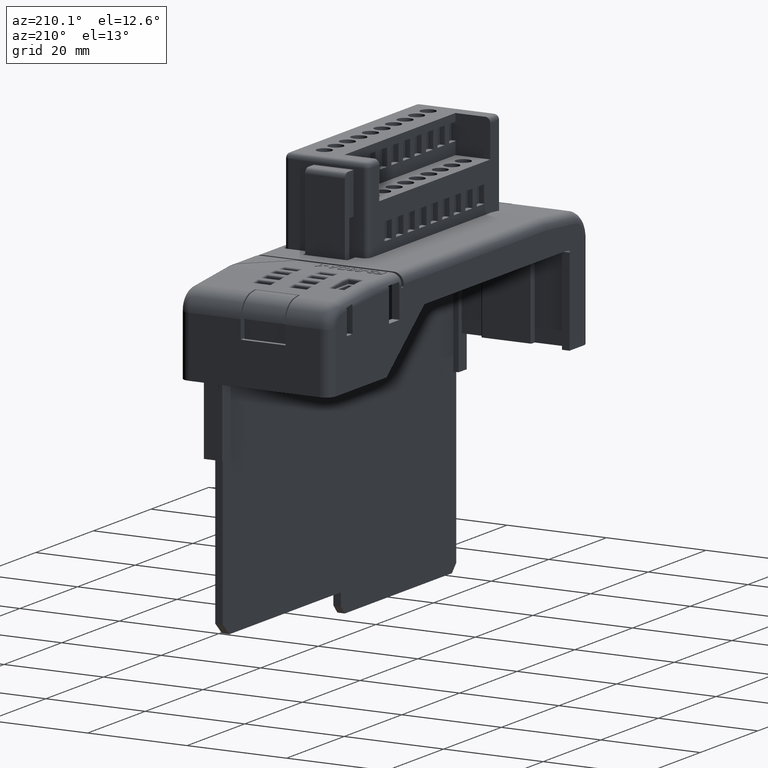
[diagram: clean part render]
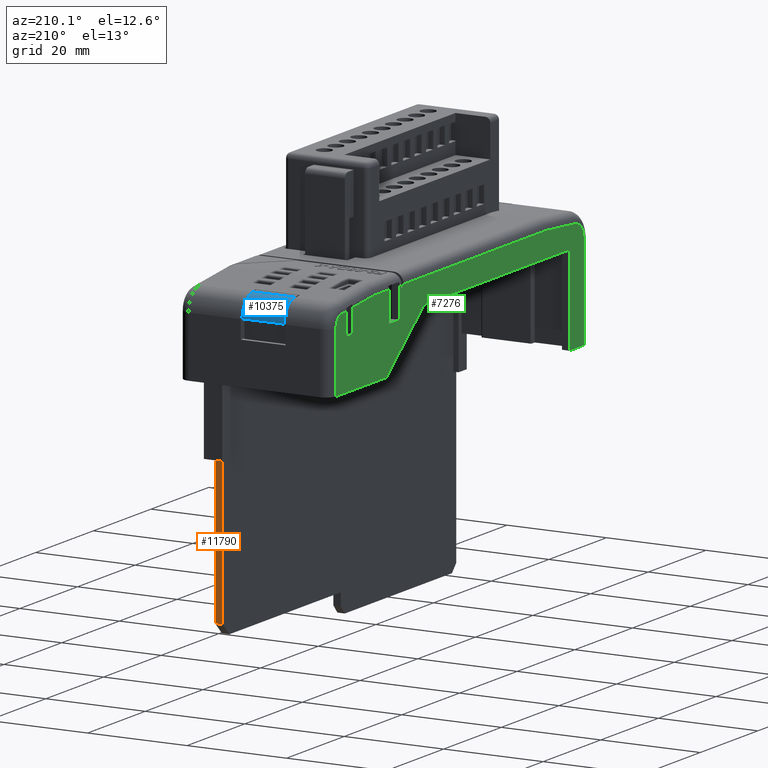
[diagram: same view with three faces highlighted in distinct colors, each labeled with its STEP entity id]
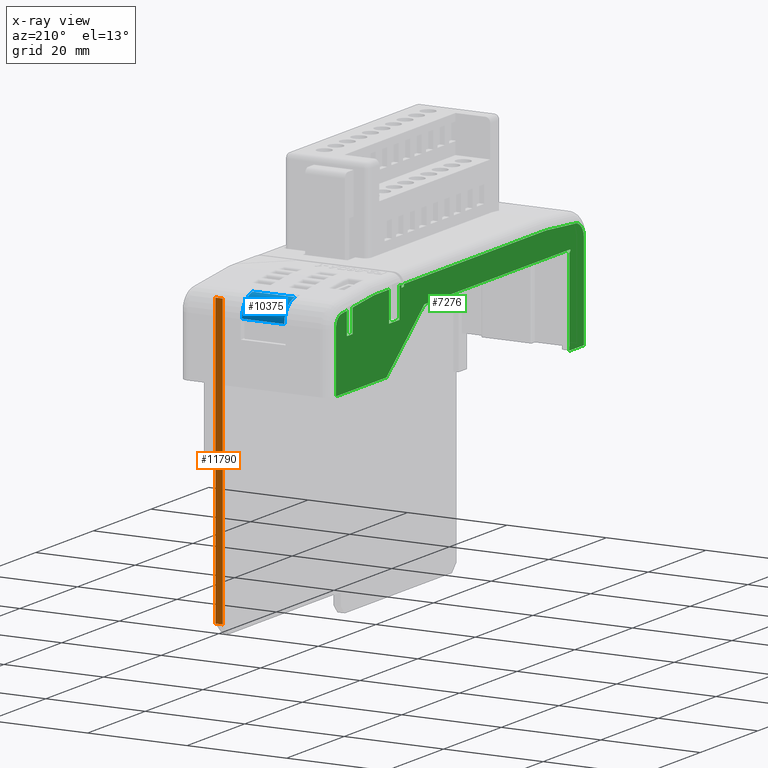
[diagram: x-ray of the same camera — body ghosted, the three highlighted faces saturated]
A machine part, auxiliary view with three faces highlighted in distinct colors.
The next image is the same camera in x-ray (body ghosted, the three faces saturated) — at least one of them is partly hidden behind the body in this view.
Their STEP definitions:

[orange] entity #11790 — the highlighted planar face has unit normal (0, -1, 0).
#5488 = CARTESIAN_POINT ( 'NONE',  ( 24.78303960287886600, 44.88700087247079300, -26.63627445836080200 ) ) ;
#5533 = DIRECTION ( 'NONE',  ( 0.0000000000000000000, 0.0000000000000000000, -1.000000000000000000 ) ) ;
#5534 = VECTOR ( 'NONE', #5533, 1000.000000000000000 ) ;
#5535 = CARTESIAN_POINT ( 'NONE',  ( 24.78303960287886600, 44.88700087247079300, 1.850847262512347500 ) ) ;
#5536 = LINE ( 'NONE', #5535, #5534 ) ;
#5760 = CARTESIAN_POINT ( 'NONE',  ( 24.78303960287886600, 44.88700087247079300, 1.850847262512347300 ) ) ;
#11646 = EDGE_CURVE ( 'NONE', #11647, #11672, #30476, .T. ) ;
#11647 = VERTEX_POINT ( 'NONE', #30472 ) ;
#11672 = VERTEX_POINT ( 'NONE', #30609 ) ;
#11754 = EDGE_CURVE ( 'NONE', #11647, #11755, #30802, .T. ) ;
#11755 = VERTEX_POINT ( 'NONE', #30798 ) ;
#11789 = EDGE_CURVE ( 'NONE', #11755, #32156, #30821, .T. ) ;
#11790 = ADVANCED_FACE ( 'NONE', ( #30876 ), #30859, .F. ) ;
#11791 = EDGE_LOOP ( 'NONE', ( #11792, #11794, #11795, #11796, #11797 ) ) ;
#11792 = ORIENTED_EDGE ( 'NONE', *, *, #11793, .T. ) ;
#11793 = EDGE_CURVE ( 'NONE', #11672, #25363, #30853, .T. ) ;
#11794 = ORIENTED_EDGE ( 'NONE', *, *, #25370, .F. ) ;
#11795 = ORIENTED_EDGE ( 'NONE', *, *, #11789, .F. ) ;
#11796 = ORIENTED_EDGE ( 'NONE', *, *, #11754, .F. ) ;
#11797 = ORIENTED_EDGE ( 'NONE', *, *, #11646, .T. ) ;
#25363 = VERTEX_POINT ( 'NONE', #5488 ) ;
#25370 = EDGE_CURVE ( 'NONE', #32156, #25363, #5536, .T. ) ;
#30472 = CARTESIAN_POINT ( 'NONE',  ( 26.28303960287886600, 44.88700087247079300, -56.24717430906225200 ) ) ;
#30473 = DIRECTION ( 'NONE',  ( -1.000000000000000000, -0.0000000000000000000, -0.0000000000000000000 ) ) ;
#30474 = VECTOR ( 'NONE', #30473, 1000.000000000000000 ) ;
#30475 = CARTESIAN_POINT ( 'NONE',  ( 26.28303960287886600, 44.88700087247079300, -56.24717430906225200 ) ) ;
#30476 = LINE ( 'NONE', #30475, #30474 ) ;
#30609 = CARTESIAN_POINT ( 'NONE',  ( 24.78303960287886600, 44.88700087247079300, -56.24717430906225200 ) ) ;
#30798 = CARTESIAN_POINT ( 'NONE',  ( 26.28303960287886600, 44.88700087247079300, 1.850847262512347500 ) ) ;
#30799 = DIRECTION ( 'NONE',  ( -0.0000000000000000000, -0.0000000000000000000, 1.000000000000000000 ) ) ;
#30800 = VECTOR ( 'NONE', #30799, 1000.000000000000000 ) ;
#30801 = CARTESIAN_POINT ( 'NONE',  ( 26.28303960287886600, 44.88700087247079300, 1.850847262512347500 ) ) ;
#30802 = LINE ( 'NONE', #30801, #30800 ) ;
#30818 = DIRECTION ( 'NONE',  ( -1.000000000000000000, -0.0000000000000000000, -0.0000000000000000000 ) ) ;
#30819 = VECTOR ( 'NONE', #30818, 1000.000000000000000 ) ;
#30820 = CARTESIAN_POINT ( 'NONE',  ( 26.28303960287886600, 44.88700087247079300, 1.850847262512347500 ) ) ;
#30821 = LINE ( 'NONE', #30820, #30819 ) ;
#30850 = DIRECTION ( 'NONE',  ( -0.0000000000000000000, -0.0000000000000000000, 1.000000000000000000 ) ) ;
#30851 = VECTOR ( 'NONE', #30850, 1000.000000000000000 ) ;
#30852 = CARTESIAN_POINT ( 'NONE',  ( 24.78303960287886600, 44.88700087247079300, 1.850847262512347500 ) ) ;
#30853 = LINE ( 'NONE', #30852, #30851 ) ;
#30855 = DIRECTION ( 'NONE',  ( 0.0000000000000000000, -0.0000000000000000000, -1.000000000000000000 ) ) ;
#30856 = DIRECTION ( 'NONE',  ( 0.0000000000000000000, -1.000000000000000000, 0.0000000000000000000 ) ) ;
#30857 = CARTESIAN_POINT ( 'NONE',  ( 26.28303960287886600, 44.88700087247079300, 1.850847262512347500 ) ) ;
#30858 = AXIS2_PLACEMENT_3D ( 'NONE', #30857, #30856, #30855 ) ;
#30859 = PLANE ( 'NONE',  #30858 ) ;
#30876 = FACE_OUTER_BOUND ( 'NONE', #11791, .T. ) ;
#32156 = VERTEX_POINT ( 'NONE', #5760 ) ;

[blue] entity #10375 — the highlighted cylindrical surface (edge-blend (fillet) strip) has radius 4.116 mm, axis along (-1, -0, -0).
#10351 = ORIENTED_EDGE ( 'NONE', *, *, #10352, .T. ) ;
#10352 = EDGE_CURVE ( 'NONE', #10371, #10353, #26361, .T. ) ;
#10353 = VERTEX_POINT ( 'NONE', #26352 ) ;
#10354 = ORIENTED_EDGE ( 'NONE', *, *, #10355, .T. ) ;
#10355 = EDGE_CURVE ( 'NONE', #10353, #10384, #26350, .T. ) ;
#10356 = ORIENTED_EDGE ( 'NONE', *, *, #10383, .T. ) ;
#10371 = VERTEX_POINT ( 'NONE', #26406 ) ;
#10373 = EDGE_CURVE ( 'NONE', #10371, #10381, #26404, .T. ) ;
#10375 = ADVANCED_FACE ( 'NONE', ( #26400 ), #26437, .T. ) ;
#10376 = EDGE_LOOP ( 'NONE', ( #10377, #10351, #10354, #10356 ) ) ;
#10377 = ORIENTED_EDGE ( 'NONE', *, *, #10373, .F. ) ;
#10381 = VERTEX_POINT ( 'NONE', #26427 ) ;
#10383 = EDGE_CURVE ( 'NONE', #10384, #10381, #26426, .T. ) ;
#10384 = VERTEX_POINT ( 'NONE', #26473 ) ;
#26347 = DIRECTION ( 'NONE',  ( -1.000000000000000000, -0.0000000000000000000, -0.0000000000000000000 ) ) ;
#26348 = VECTOR ( 'NONE', #26347, 1000.000000000000000 ) ;
#26349 = CARTESIAN_POINT ( 'NONE',  ( 27.84626436469064000, 49.47447470938786300, -0.1325193732507817000 ) ) ;
#26350 = LINE ( 'NONE', #26349, #26348 ) ;
#26352 = CARTESIAN_POINT ( 'NONE',  ( 18.25000000000000000, 49.47447470938786300, -0.1325193732507817000 ) ) ;
#26353 = DIRECTION ( 'NONE',  ( 0.0000000000000000000, 0.0000000000000000000, 1.000000000000000000 ) ) ;
#26354 = DIRECTION ( 'NONE',  ( -1.000000000000000000, 0.0000000000000000000, 0.0000000000000000000 ) ) ;
#26355 = CARTESIAN_POINT ( 'NONE',  ( 18.25000000000000000, 45.35844399414033700, -0.1325193732508093700 ) ) ;
#26356 = AXIS2_PLACEMENT_3D ( 'NONE', #26355, #26354, #26353 ) ;
#26361 = CIRCLE ( 'NONE', #26356, 4.116030715247525500 ) ;
#26400 = FACE_OUTER_BOUND ( 'NONE', #10376, .T. ) ;
#26401 = DIRECTION ( 'NONE',  ( -1.000000000000000000, -0.0000000000000000000, -0.0000000000000000000 ) ) ;
#26402 = VECTOR ( 'NONE', #26401, 1000.000000000000000 ) ;
#26403 = CARTESIAN_POINT ( 'NONE',  ( 27.84626436469064000, 45.76829092650315500, 3.963055597482093400 ) ) ;
#26404 = LINE ( 'NONE', #26403, #26402 ) ;
#26406 = CARTESIAN_POINT ( 'NONE',  ( 18.25000000000000000, 45.76829092650315500, 3.963055597482093400 ) ) ;
#26424 = CARTESIAN_POINT ( 'NONE',  ( 9.750000000000000000, 45.35844399414033700, -0.1325193732508093700 ) ) ;
#26425 = AXIS2_PLACEMENT_3D ( 'NONE', #26424, #26475, #26474 ) ;
#26426 = CIRCLE ( 'NONE', #26425, 4.116030715247525500 ) ;
#26427 = CARTESIAN_POINT ( 'NONE',  ( 9.750000000000000000, 45.76829092650315500, 3.963055597482093400 ) ) ;
#26432 = DIRECTION ( 'NONE',  ( 0.0000000000000000000, 0.0000000000000000000, 1.000000000000000000 ) ) ;
#26433 = DIRECTION ( 'NONE',  ( -1.000000000000000000, -0.0000000000000000000, -0.0000000000000000000 ) ) ;
#26434 = CARTESIAN_POINT ( 'NONE',  ( 27.84626436469064000, 45.35844399414033700, -0.1325193732508093700 ) ) ;
#26435 = AXIS2_PLACEMENT_3D ( 'NONE', #26434, #26433, #26432 ) ;
#26437 = CYLINDRICAL_SURFACE ( 'NONE', #26435, 4.116030715247525500 ) ;
#26473 = CARTESIAN_POINT ( 'NONE',  ( 9.750000000000000000, 49.47447470938786300, -0.1325193732507817000 ) ) ;
#26474 = DIRECTION ( 'NONE',  ( 0.0000000000000000000, 0.0000000000000000000, 1.000000000000000000 ) ) ;
#26475 = DIRECTION ( 'NONE',  ( 1.000000000000000000, 0.0000000000000000000, -0.0000000000000000000 ) ) ;

[green] entity #7276 — the highlighted planar face has unit normal (1, 0, -0).
#1320 = EDGE_CURVE ( 'NONE', #13084, #1321, #13403, .T. ) ;
#1321 = VERTEX_POINT ( 'NONE', #13399 ) ;
#1382 = EDGE_CURVE ( 'NONE', #1517, #1506, #13398, .T. ) ;
#1506 = VERTEX_POINT ( 'NONE', #13392 ) ;
#1517 = VERTEX_POINT ( 'NONE', #13387 ) ;
#4729 = CARTESIAN_POINT ( 'NONE',  ( 0.5000000000000000000, 24.72293079737083200, 2.615798087132890100 ) ) ;
#4730 = CARTESIAN_POINT ( 'NONE',  ( 0.5000000000000000000, 24.72293079737083200, 3.113725541639198500 ) ) ;
#4789 = DIRECTION ( 'NONE',  ( 0.0000000000000000000, 0.0000000000000000000, -1.000000000000000000 ) ) ;
#4790 = VECTOR ( 'NONE', #4789, 1000.000000000000000 ) ;
#4791 = CARTESIAN_POINT ( 'NONE',  ( 0.5000000000000000000, 24.72293079737083200, 4.363725541639205100 ) ) ;
#4792 = LINE ( 'NONE', #4791, #4790 ) ;
#5605 = CARTESIAN_POINT ( 'NONE',  ( 0.5000000000000000000, 23.97447470938786700, 3.113725541639198900 ) ) ;
#5607 = DIRECTION ( 'NONE',  ( 0.0000000000000000000, 1.000000000000000000, -7.245885361707420800E-017 ) ) ;
#5608 = VECTOR ( 'NONE', #5607, 1000.000000000000000 ) ;
#5609 = CARTESIAN_POINT ( 'NONE',  ( 0.5000000000000000000, 34.26971755498956900, 3.113725541639194000 ) ) ;
#5610 = LINE ( 'NONE', #5609, #5608 ) ;
#5615 = CARTESIAN_POINT ( 'NONE',  ( 0.5000000000000000000, -25.50935379472779700, 3.113725541639198500 ) ) ;
#6443 = VERTEX_POINT ( 'NONE', #14790 ) ;
#6482 = VERTEX_POINT ( 'NONE', #14863 ) ;
#6484 = EDGE_CURVE ( 'NONE', #6443, #6482, #14861, .T. ) ;
#6683 = VERTEX_POINT ( 'NONE', #15259 ) ;
#6685 = EDGE_CURVE ( 'NONE', #6686, #6683, #15258, .T. ) ;
#6686 = VERTEX_POINT ( 'NONE', #15254 ) ;
#7276 = ADVANCED_FACE ( 'NONE', ( #16790 ), #16837, .F. ) ;
#7277 = EDGE_LOOP ( 'NONE', ( #7278, #7279, #7282, #7284, #7285, #7348, #7351, #7354, #7356, #7357, #7360, #7335, #7338, #7342, #7345, #7319, #7321, #7322, #7325, #7328, #7331, #7394, #7396, #7397, #7400, #7403 ) ) ;
#7278 = ORIENTED_EDGE ( 'NONE', *, *, #29689, .T. ) ;
#7279 = ORIENTED_EDGE ( 'NONE', *, *, #7280, .F. ) ;
#7280 = EDGE_CURVE ( 'NONE', #7281, #29755, #16832, .T. ) ;
#7281 = VERTEX_POINT ( 'NONE', #16828 ) ;
#7282 = ORIENTED_EDGE ( 'NONE', *, *, #7283, .F. ) ;
#7283 = EDGE_CURVE ( 'NONE', #13085, #7281, #16826, .T. ) ;
#7284 = ORIENTED_EDGE ( 'NONE', *, *, #13086, .F. ) ;
#7285 = ORIENTED_EDGE ( 'NONE', *, *, #1320, .T. ) ;
#7316 = EDGE_CURVE ( 'NONE', #7402, #29557, #16941, .T. ) ;
#7319 = ORIENTED_EDGE ( 'NONE', *, *, #7320, .T. ) ;
#7320 = EDGE_CURVE ( 'NONE', #7347, #6686, #16973, .T. ) ;
#7321 = ORIENTED_EDGE ( 'NONE', *, *, #6685, .T. ) ;
#7322 = ORIENTED_EDGE ( 'NONE', *, *, #7323, .F. ) ;
#7323 = EDGE_CURVE ( 'NONE', #7324, #6683, #16969, .T. ) ;
#7324 = VERTEX_POINT ( 'NONE', #16965 ) ;
#7325 = ORIENTED_EDGE ( 'NONE', *, *, #7326, .F. ) ;
#7326 = EDGE_CURVE ( 'NONE', #7327, #7324, #16964, .T. ) ;
#7327 = VERTEX_POINT ( 'NONE', #16959 ) ;
#7328 = ORIENTED_EDGE ( 'NONE', *, *, #7329, .F. ) ;
#7329 = EDGE_CURVE ( 'NONE', #7330, #7327, #16958, .T. ) ;
#7330 = VERTEX_POINT ( 'NONE', #16954 ) ;
#7331 = ORIENTED_EDGE ( 'NONE', *, *, #7332, .F. ) ;
#7332 = EDGE_CURVE ( 'NONE', #7393, #7330, #16953, .T. ) ;
#7333 = EDGE_CURVE ( 'NONE', #7334, #7359, #16948, .T. ) ;
#7334 = VERTEX_POINT ( 'NONE', #17004 ) ;
#7335 = ORIENTED_EDGE ( 'NONE', *, *, #7336, .F. ) ;
#7336 = EDGE_CURVE ( 'NONE', #7337, #7334, #17003, .T. ) ;
#7337 = VERTEX_POINT ( 'NONE', #16999 ) ;
#7338 = ORIENTED_EDGE ( 'NONE', *, *, #7339, .F. ) ;
#7339 = EDGE_CURVE ( 'NONE', #7340, #7337, #16998, .T. ) ;
#7340 = VERTEX_POINT ( 'NONE', #16994 ) ;
#7342 = ORIENTED_EDGE ( 'NONE', *, *, #7343, .T. ) ;
#7343 = EDGE_CURVE ( 'NONE', #7340, #7344, #16993, .T. ) ;
#7344 = VERTEX_POINT ( 'NONE', #16989 ) ;
#7345 = ORIENTED_EDGE ( 'NONE', *, *, #7346, .T. ) ;
#7346 = EDGE_CURVE ( 'NONE', #7344, #7347, #16988, .T. ) ;
#7347 = VERTEX_POINT ( 'NONE', #16983 ) ;
#7348 = ORIENTED_EDGE ( 'NONE', *, *, #7349, .F. ) ;
#7349 = EDGE_CURVE ( 'NONE', #7350, #1321, #16982, .T. ) ;
#7350 = VERTEX_POINT ( 'NONE', #16978 ) ;
#7351 = ORIENTED_EDGE ( 'NONE', *, *, #7352, .F. ) ;
#7352 = EDGE_CURVE ( 'NONE', #7353, #7350, #17038, .T. ) ;
#7353 = VERTEX_POINT ( 'NONE', #17034 ) ;
#7354 = ORIENTED_EDGE ( 'NONE', *, *, #7355, .F. ) ;
#7355 = EDGE_CURVE ( 'NONE', #1517, #7353, #17033, .T. ) ;
#7356 = ORIENTED_EDGE ( 'NONE', *, *, #1382, .T. ) ;
#7357 = ORIENTED_EDGE ( 'NONE', *, *, #7358, .T. ) ;
#7358 = EDGE_CURVE ( 'NONE', #1506, #7359, #17029, .T. ) ;
#7359 = VERTEX_POINT ( 'NONE', #17025 ) ;
#7360 = ORIENTED_EDGE ( 'NONE', *, *, #7333, .F. ) ;
#7393 = VERTEX_POINT ( 'NONE', #17141 ) ;
#7394 = ORIENTED_EDGE ( 'NONE', *, *, #7395, .F. ) ;
#7395 = EDGE_CURVE ( 'NONE', #6443, #7393, #17140, .T. ) ;
#7396 = ORIENTED_EDGE ( 'NONE', *, *, #6484, .T. ) ;
#7397 = ORIENTED_EDGE ( 'NONE', *, *, #7398, .T. ) ;
#7398 = EDGE_CURVE ( 'NONE', #6482, #7399, #17180, .T. ) ;
#7399 = VERTEX_POINT ( 'NONE', #17176 ) ;
#7400 = ORIENTED_EDGE ( 'NONE', *, *, #7401, .T. ) ;
#7401 = EDGE_CURVE ( 'NONE', #7399, #7402, #17175, .T. ) ;
#7402 = VERTEX_POINT ( 'NONE', #17170 ) ;
#7403 = ORIENTED_EDGE ( 'NONE', *, *, #7316, .T. ) ;
#13084 = VERTEX_POINT ( 'NONE', #4730 ) ;
#13085 = VERTEX_POINT ( 'NONE', #4729 ) ;
#13086 = EDGE_CURVE ( 'NONE', #13084, #13085, #4792, .T. ) ;
#13387 = CARTESIAN_POINT ( 'NONE',  ( 0.5000000000000000000, 29.10293079737083500, 3.113725541639194900 ) ) ;
#13392 = CARTESIAN_POINT ( 'NONE',  ( 0.5000000000000000000, 34.16989616851881100, 3.113725541639194000 ) ) ;
#13395 = DIRECTION ( 'NONE',  ( 0.0000000000000000000, 1.000000000000000000, -7.245885361707420800E-017 ) ) ;
#13396 = VECTOR ( 'NONE', #13395, 1000.000000000000000 ) ;
#13397 = CARTESIAN_POINT ( 'NONE',  ( 0.5000000000000000000, 34.26971755498956900, 3.113725541639194000 ) ) ;
#13398 = LINE ( 'NONE', #13397, #13396 ) ;
#13399 = CARTESIAN_POINT ( 'NONE',  ( 0.5000000000000000000, 25.47293079737083200, 3.113725541639194900 ) ) ;
#13400 = DIRECTION ( 'NONE',  ( 0.0000000000000000000, 1.000000000000000000, -7.245885361707420800E-017 ) ) ;
#13401 = VECTOR ( 'NONE', #13400, 1000.000000000000000 ) ;
#13402 = CARTESIAN_POINT ( 'NONE',  ( 0.5000000000000000000, 34.26971755498956900, 3.113725541639194000 ) ) ;
#13403 = LINE ( 'NONE', #13402, #13401 ) ;
#14790 = CARTESIAN_POINT ( 'NONE',  ( 0.5000000000000000000, -33.52706855259259600, -19.88627445836351600 ) ) ;
#14858 = DIRECTION ( 'NONE',  ( -0.0000000000000000000, -1.000000000000000000, -0.0000000000000000000 ) ) ;
#14859 = VECTOR ( 'NONE', #14858, 1000.000000000000000 ) ;
#14860 = CARTESIAN_POINT ( 'NONE',  ( 0.5000000000000000000, -40.52706855259260300, -19.88627445836351600 ) ) ;
#14861 = LINE ( 'NONE', #14860, #14859 ) ;
#14863 = CARTESIAN_POINT ( 'NONE',  ( 0.5000000000000000000, -38.52706855259260300, -19.88627445836351600 ) ) ;
#15254 = CARTESIAN_POINT ( 'NONE',  ( 0.5000000000000000000, 47.47293079737084300, -12.38627445836350600 ) ) ;
#15255 = DIRECTION ( 'NONE',  ( -0.0000000000000000000, -1.000000000000000000, -0.0000000000000000000 ) ) ;
#15256 = VECTOR ( 'NONE', #15255, 1000.000000000000000 ) ;
#15257 = CARTESIAN_POINT ( 'NONE',  ( 0.5000000000000000000, 29.97293144740908800, -12.38627445836350600 ) ) ;
#15258 = LINE ( 'NONE', #15257, #15256 ) ;
#15259 = CARTESIAN_POINT ( 'NONE',  ( 0.5000000000000000000, 29.97293144740908800, -12.38627445836350600 ) ) ;
#16790 = FACE_OUTER_BOUND ( 'NONE', #7277, .T. ) ;
#16823 = DIRECTION ( 'NONE',  ( 0.0000000000000000000, -1.000000000000000000, 0.0000000000000000000 ) ) ;
#16824 = VECTOR ( 'NONE', #16823, 1000.000000000000000 ) ;
#16825 = CARTESIAN_POINT ( 'NONE',  ( 0.5000000000000000000, 24.72293079737083200, 2.615798087132890100 ) ) ;
#16826 = LINE ( 'NONE', #16825, #16824 ) ;
#16828 = CARTESIAN_POINT ( 'NONE',  ( 0.5000000000000000000, 23.97447470938786700, 2.615798087132890100 ) ) ;
#16829 = DIRECTION ( 'NONE',  ( -0.0000000000000000000, -0.0000000000000000000, 1.000000000000000000 ) ) ;
#16830 = VECTOR ( 'NONE', #16829, 1000.000000000000000 ) ;
#16831 = CARTESIAN_POINT ( 'NONE',  ( 0.5000000000000000000, 23.97447470938786700, 4.363725541639206000 ) ) ;
#16832 = LINE ( 'NONE', #16831, #16830 ) ;
#16833 = DIRECTION ( 'NONE',  ( -0.0000000000000000000, 0.0000000000000000000, -1.000000000000000000 ) ) ;
#16834 = DIRECTION ( 'NONE',  ( 1.000000000000000000, 0.0000000000000000000, -0.0000000000000000000 ) ) ;
#16835 = CARTESIAN_POINT ( 'NONE',  ( 0.5000000000000000000, -35.25803190597711300, -0.8760366052940546900 ) ) ;
#16836 = AXIS2_PLACEMENT_3D ( 'NONE', #16835, #16834, #16833 ) ;
#16837 = PLANE ( 'NONE',  #16836 ) ;
#16938 = DIRECTION ( 'NONE',  ( 0.0000000000000000000, 0.9973428485038128300, 0.07285082386837350700 ) ) ;
#16939 = VECTOR ( 'NONE', #16938, 1000.000000000000000 ) ;
#16940 = CARTESIAN_POINT ( 'NONE',  ( 0.5000000000000000000, -35.49617844535259100, 2.384238781175184800 ) ) ;
#16941 = LINE ( 'NONE', #16940, #16939 ) ;
#16948 = LINE ( 'NONE', #17007, #17006 ) ;
#16949 = DIRECTION ( 'NONE',  ( 0.0000000000000000000, 0.0000000000000000000, -1.000000000000000000 ) ) ;
#16950 = DIRECTION ( 'NONE',  ( -1.000000000000000000, 0.0000000000000000000, 0.0000000000000000000 ) ) ;
#16951 = CARTESIAN_POINT ( 'NONE',  ( 0.5000000000000000000, -33.32604020110100200, -1.928467073212228000 ) ) ;
#16952 = AXIS2_PLACEMENT_3D ( 'NONE', #16951, #16950, #16949 ) ;
#16953 = CIRCLE ( 'NONE', #16952, 0.4999999999999973900 ) ;
#16954 = CARTESIAN_POINT ( 'NONE',  ( 0.5000000000000000000, -33.82425680384722700, -1.886274458360795300 ) ) ;
#16955 = DIRECTION ( 'NONE',  ( -0.0000000000000000000, 1.000000000000000000, -1.245970160518901400E-016 ) ) ;
#16956 = VECTOR ( 'NONE', #16955, 1000.000000000000000 ) ;
#16957 = CARTESIAN_POINT ( 'NONE',  ( 0.5000000000000000000, 16.64543179444991900, -1.886274458360801500 ) ) ;
#16958 = LINE ( 'NONE', #16957, #16956 ) ;
#16959 = CARTESIAN_POINT ( 'NONE',  ( 0.5000000000000000000, 16.64543179444991900, -1.886274458360801500 ) ) ;
#16960 = DIRECTION ( 'NONE',  ( 0.0000000000000000000, 0.0000000000000000000, -1.000000000000000000 ) ) ;
#16961 = DIRECTION ( 'NONE',  ( -1.000000000000000000, 0.0000000000000000000, 0.0000000000000000000 ) ) ;
#16962 = CARTESIAN_POINT ( 'NONE',  ( 0.5000000000000000000, 16.64543179444991900, -2.386274458360802000 ) ) ;
#16963 = AXIS2_PLACEMENT_3D ( 'NONE', #16962, #16961, #16960 ) ;
#16964 = CIRCLE ( 'NONE', #16963, 0.5000000000000000000 ) ;
#16965 = CARTESIAN_POINT ( 'NONE',  ( 0.5000000000000000000, 16.98855011857336500, -2.022585283857738100 ) ) ;
#16966 = DIRECTION ( 'NONE',  ( -0.0000000000000000000, 0.7815676116496597100, -0.6238205418389544100 ) ) ;
#16967 = VECTOR ( 'NONE', #16966, 1000.000000000000200 ) ;
#16968 = CARTESIAN_POINT ( 'NONE',  ( 0.5000000000000000000, 29.97293144740908800, -12.38627445836350600 ) ) ;
#16969 = LINE ( 'NONE', #16968, #16967 ) ;
#16970 = DIRECTION ( 'NONE',  ( -0.0000000000000000000, 0.0000000000000000000, -1.000000000000000000 ) ) ;
#16971 = VECTOR ( 'NONE', #16970, 1000.000000000000000 ) ;
#16972 = CARTESIAN_POINT ( 'NONE',  ( 0.5000000000000000000, 47.47293079737084300, -12.38627445836350600 ) ) ;
#16973 = LINE ( 'NONE', #16972, #16971 ) ;
#16978 = CARTESIAN_POINT ( 'NONE',  ( 0.5000000000000000000, 25.47293079737083200, -2.981795091548542100 ) ) ;
#16979 = DIRECTION ( 'NONE',  ( -0.0000000000000000000, -0.0000000000000000000, 1.000000000000000000 ) ) ;
#16980 = VECTOR ( 'NONE', #16979, 1000.000000000000000 ) ;
#16981 = CARTESIAN_POINT ( 'NONE',  ( 0.5000000000000000000, 25.47293079737083200, 3.759795060734205700 ) ) ;
#16982 = LINE ( 'NONE', #16981, #16980 ) ;
#16983 = CARTESIAN_POINT ( 'NONE',  ( 0.5000000000000000000, 47.47293079737084300, -0.2133373590894488100 ) ) ;
#16984 = DIRECTION ( 'NONE',  ( 0.0000000000000000000, 0.0000000000000000000, -1.000000000000000000 ) ) ;
#16985 = DIRECTION ( 'NONE',  ( -1.000000000000000000, 0.0000000000000000000, 0.0000000000000000000 ) ) ;
#16986 = CARTESIAN_POINT ( 'NONE',  ( 0.5000000000000000000, 45.35844399414035200, -0.1325193732507959400 ) ) ;
#16987 = AXIS2_PLACEMENT_3D ( 'NONE', #16986, #16985, #16984 ) ;
#16988 = CIRCLE ( 'NONE', #16987, 2.116030715247511700 ) ;
#16989 = CARTESIAN_POINT ( 'NONE',  ( 0.5000000000000000000, 45.56914424334326000, 1.972995146494135300 ) ) ;
#16990 = DIRECTION ( 'NONE',  ( 0.0000000000000000000, 0.9950302254939813500, -0.09957334157994532400 ) ) ;
#16991 = VECTOR ( 'NONE', #16990, 1000.000000000000100 ) ;
#16992 = CARTESIAN_POINT ( 'NONE',  ( 0.5000000000000000000, 45.56914424334328800, 1.972995146494129300 ) ) ;
#16993 = LINE ( 'NONE', #16992, #16991 ) ;
#16994 = CARTESIAN_POINT ( 'NONE',  ( 0.5000000000000000000, 43.72293079737083600, 2.157746963449275400 ) ) ;
#16995 = DIRECTION ( 'NONE',  ( -0.0000000000000000000, -0.0000000000000000000, -1.000000000000000000 ) ) ;
#16996 = VECTOR ( 'NONE', #16995, 1000.000000000000000 ) ;
#16997 = CARTESIAN_POINT ( 'NONE',  ( 0.5000000000000000000, 43.72293079737083600, -2.368441087615832200 ) ) ;
#16998 = LINE ( 'NONE', #16997, #16996 ) ;
#16999 = CARTESIAN_POINT ( 'NONE',  ( 0.5000000000000000000, 43.72293079737083600, -2.368441087615832200 ) ) ;
#17000 = DIRECTION ( 'NONE',  ( 0.0000000000000000000, -1.000000000000000000, 4.336808689942013800E-016 ) ) ;
#17001 = VECTOR ( 'NONE', #17000, 1000.000000000000000 ) ;
#17002 = CARTESIAN_POINT ( 'NONE',  ( 0.5000000000000000000, 43.72293079737083600, -2.368441087615832200 ) ) ;
#17003 = LINE ( 'NONE', #17002, #17001 ) ;
#17004 = CARTESIAN_POINT ( 'NONE',  ( 0.5000000000000000000, 41.72293079737083600, -2.368441087615831300 ) ) ;
#17005 = DIRECTION ( 'NONE',  ( 0.0000000000000000000, 0.0000000000000000000, 1.000000000000000000 ) ) ;
#17006 = VECTOR ( 'NONE', #17005, 1000.000000000000000 ) ;
#17007 = CARTESIAN_POINT ( 'NONE',  ( 0.5000000000000000000, 41.72293079737083600, -2.368441087615831300 ) ) ;
#17025 = CARTESIAN_POINT ( 'NONE',  ( 0.5000000000000000000, 41.72293079737083600, 2.357888303940742300 ) ) ;
#17026 = DIRECTION ( 'NONE',  ( 0.0000000000000000000, 0.9950302254939813500, -0.09957334157994532400 ) ) ;
#17027 = VECTOR ( 'NONE', #17026, 1000.000000000000100 ) ;
#17028 = CARTESIAN_POINT ( 'NONE',  ( 0.5000000000000000000, 45.56914424334328800, 1.972995146494129300 ) ) ;
#17029 = LINE ( 'NONE', #17028, #17027 ) ;
#17030 = DIRECTION ( 'NONE',  ( 0.0000000000000000000, 0.0000000000000000000, -1.000000000000000000 ) ) ;
#17031 = VECTOR ( 'NONE', #17030, 1000.000000000000000 ) ;
#17032 = CARTESIAN_POINT ( 'NONE',  ( 0.5000000000000000000, 29.10293079737083500, 3.759795060734205200 ) ) ;
#17033 = LINE ( 'NONE', #17032, #17031 ) ;
#17034 = CARTESIAN_POINT ( 'NONE',  ( 0.5000000000000000000, 29.10293079737083500, -2.981795091548542500 ) ) ;
#17035 = DIRECTION ( 'NONE',  ( 0.0000000000000000000, -1.000000000000000000, 1.194713137725073400E-016 ) ) ;
#17036 = VECTOR ( 'NONE', #17035, 1000.000000000000000 ) ;
#17037 = CARTESIAN_POINT ( 'NONE',  ( 0.5000000000000000000, 29.10293079737083500, -2.981795091548542500 ) ) ;
#17038 = LINE ( 'NONE', #17037, #17036 ) ;
#17135 = DIRECTION ( 'NONE',  ( -0.0000000000000000000, -0.0000000000000000000, 1.000000000000000000 ) ) ;
#17136 = VECTOR ( 'NONE', #17135, 1000.000000000000000 ) ;
#17137 = CARTESIAN_POINT ( 'NONE',  ( 0.5000000000000000000, -33.52706855259259600, -2.386274458360795300 ) ) ;
#17140 = LINE ( 'NONE', #17137, #17136 ) ;
#17141 = CARTESIAN_POINT ( 'NONE',  ( 0.5000000000000000000, -33.52706855259259600, -2.386274458360794400 ) ) ;
#17170 = CARTESIAN_POINT ( 'NONE',  ( 0.5000000000000000000, -35.82161135871975700, 2.360467561590816800 ) ) ;
#17171 = DIRECTION ( 'NONE',  ( 0.0000000000000000000, 0.0000000000000000000, -1.000000000000000000 ) ) ;
#17172 = DIRECTION ( 'NONE',  ( -1.000000000000000000, 0.0000000000000000000, 0.0000000000000000000 ) ) ;
#17173 = CARTESIAN_POINT ( 'NONE',  ( 0.5000000000000000000, -35.25803190597711300, -0.8760366052940546900 ) ) ;
#17174 = AXIS2_PLACEMENT_3D ( 'NONE', #17173, #17172, #17171 ) ;
#17175 = CIRCLE ( 'NONE', #17174, 3.285206389531232700 ) ;
#17176 = CARTESIAN_POINT ( 'NONE',  ( 0.5000000000000000000, -38.52706855259259600, -0.5504902569780947300 ) ) ;
#17177 = DIRECTION ( 'NONE',  ( 0.0000000000000000000, 3.572450105930125300E-016, 1.000000000000000000 ) ) ;
#17178 = VECTOR ( 'NONE', #17177, 1000.000000000000000 ) ;
#17179 = CARTESIAN_POINT ( 'NONE',  ( 0.5000000000000000000, -38.52706855259259600, -0.4629271808495694100 ) ) ;
#17180 = LINE ( 'NONE', #17179, #17178 ) ;
#29557 = VERTEX_POINT ( 'NONE', #5615 ) ;
#29689 = EDGE_CURVE ( 'NONE', #29557, #29755, #5610, .T. ) ;
#29755 = VERTEX_POINT ( 'NONE', #5605 ) ;